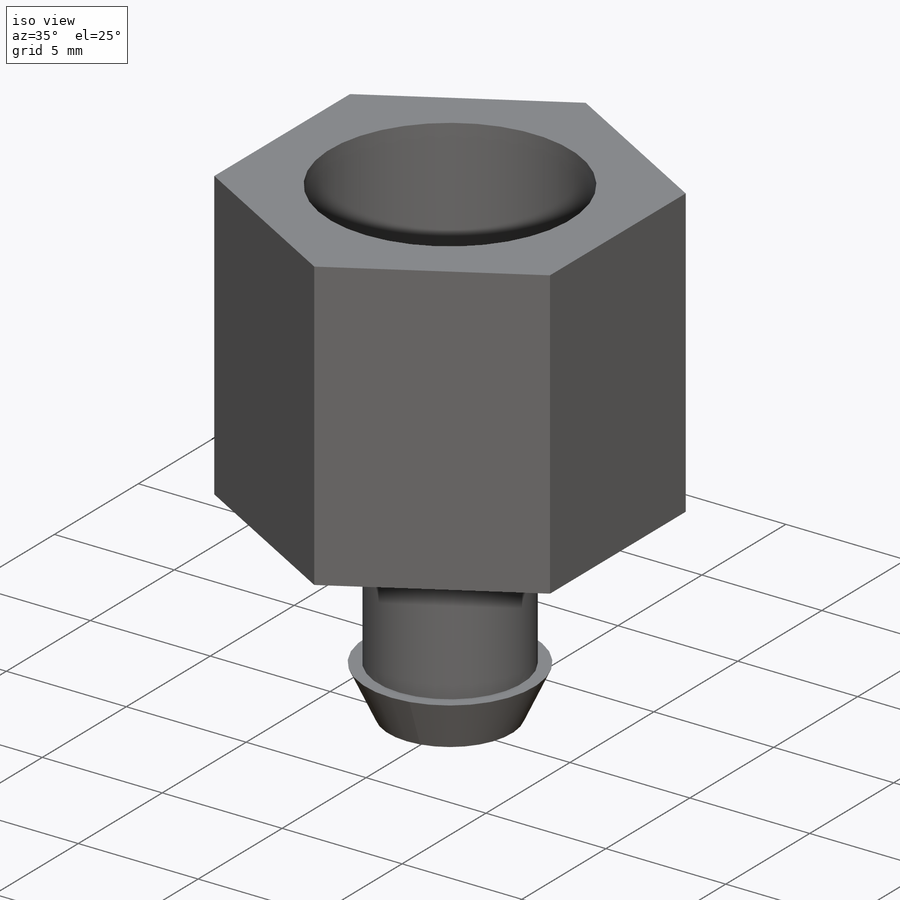
[diagram: iso view]
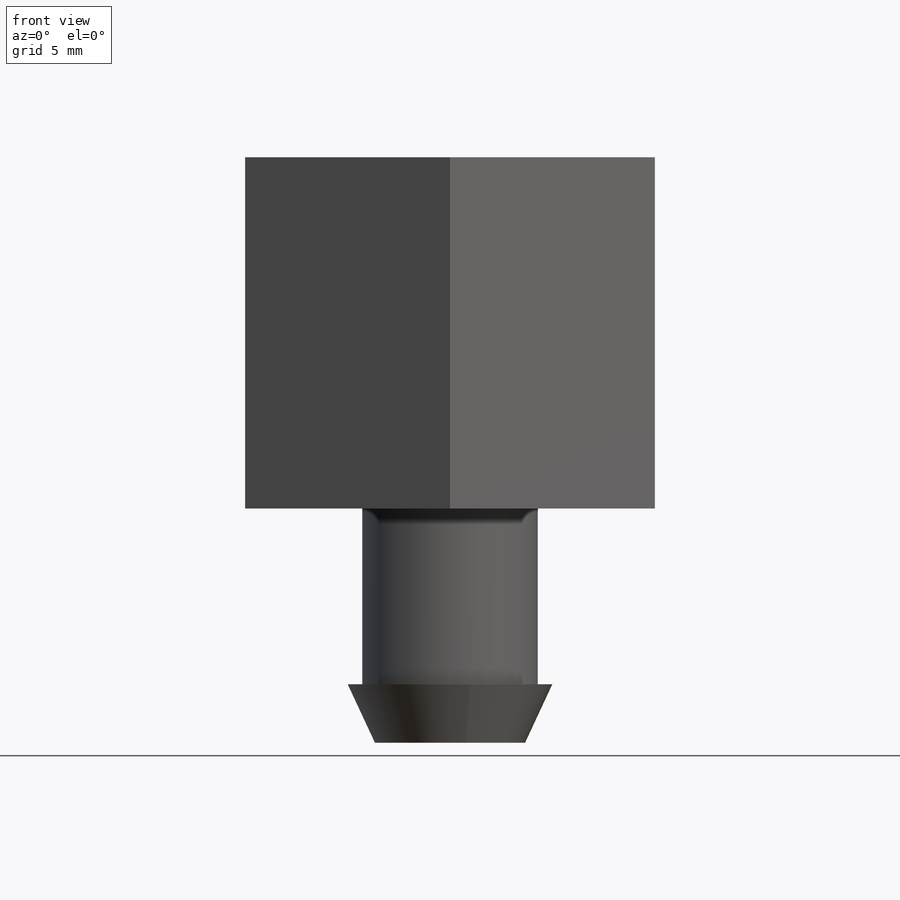
[diagram: front view]
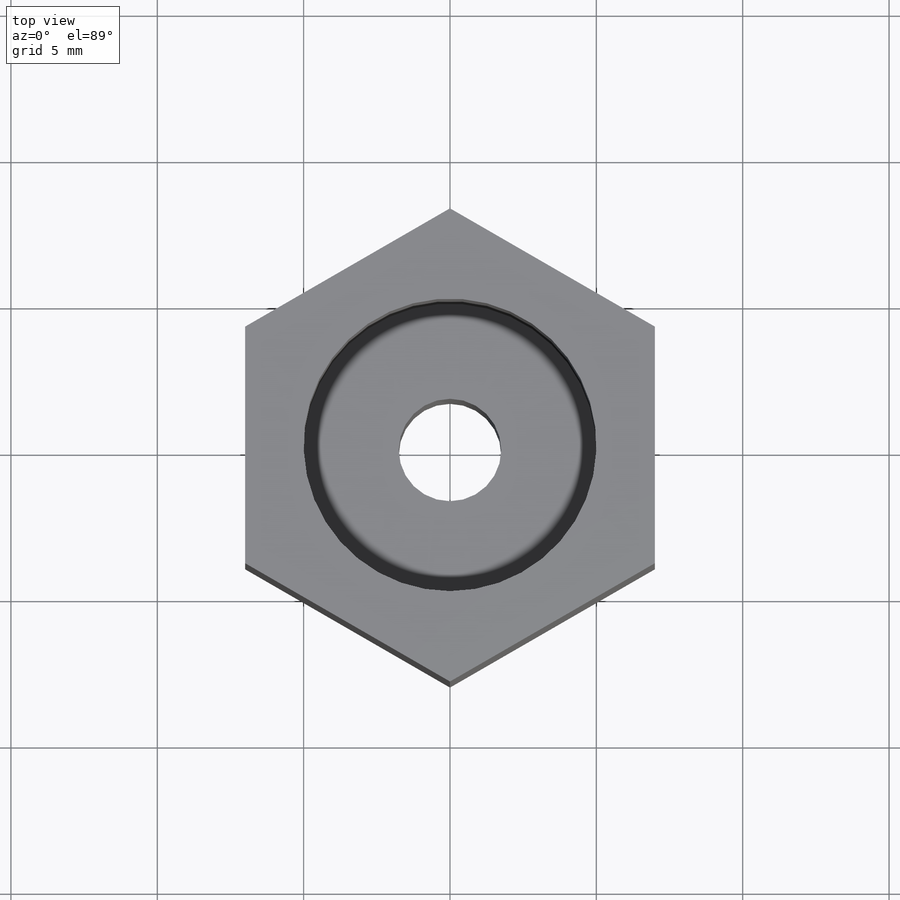
[diagram: top view]
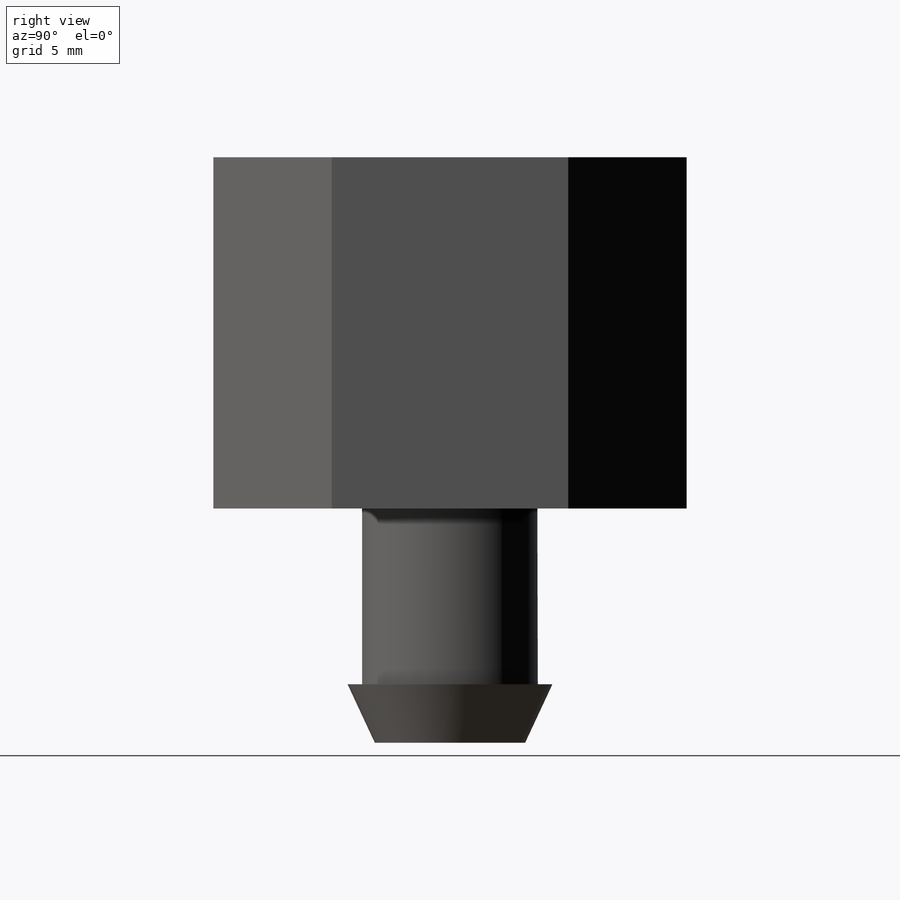
[diagram: right view]
SOLIDWORKS PART (.sldprt)
format: sldprt  version: not decoded by parser v0  size: 227,328 bytes
history: native  units: mm
features: sketch x5, plane x3, extrude x3, cut_extrude x2, material x1, chamfer x1 (+11 scaffold rows collapsed)
feature tree (26):
  scaffold x11  (default folders/planes/origin — collapsed)
  material  "Matériau <non spécifié>"
  plane  "Plan de face"
  plane  "Plan de dessus"
  plane  "Plan de droite"
  sketch  "Esquisse1"  dims[D1=14.0mm]
  extrude  "Extrusion1"  Depth=12mm
  sketch  "Esquisse2"  dims[D1=10.0mm]
  cut_extrude  "Extrusion2"  Depth=10mm
  sketch  "Esquisse3"  dims[D1=6.0mm]
  extrude  "Extrusion3"  Depth=6mm
  sketch  "Esquisse5"  dims[D1=7.0mm]
  extrude  "Extrusion5"  Depth=2mm
  sketch  "Esquisse6"  dims[D1=3.5mm]
  cut_extrude  "Extrusion6"  [1 undecoded]
  chamfer  "Chanfrein2"  Distance=2mm Angle=25deg
decode coverage: 10 of 11 modeling features carry decoded parameters
note: 1 parameter value undecoded
note: suppression state not decoded; provenance and decode notes live in map.json
